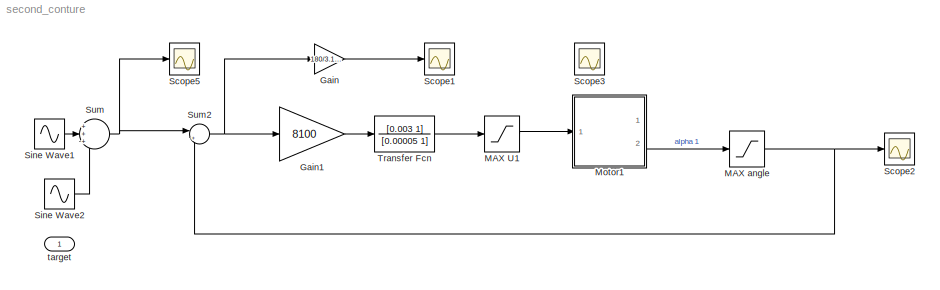
MODEL second_conture
KIND model
BLOCK [Gain] Gain
  Gain = 180/3.14*60*60
  OutDataType = fixdt(1, 16)
  OutDataTypeMode = Inherit via internal rule
  OutDataTypeStr = Inherit: Inherit via internal rule
  OutScaling = 2^0
  ParamDataTypeStr = Inherit: Inherit via internal rule
  ParameterDataType = fixdt(1, 16)
  ParameterDataTypeMode = Inherit via internal rule
  ParameterScaling = 2^0
  SaturateOnIntegerOverflow = off
BLOCK [Gain] Gain1
  Gain = 8100
  OutDataType = fixdt(1, 16)
  OutDataTypeMode = Inherit via internal rule
  OutDataTypeStr = Inherit: Inherit via internal rule
  OutScaling = 2^0
  ParamDataTypeStr = Inherit: Inherit via internal rule
  ParameterDataType = fixdt(1, 16)
  ParameterDataTypeMode = Inherit via internal rule
  ParameterScaling = 2^0
  SaturateOnIntegerOverflow = off
BLOCK [Saturate] MAX U1
  LowerLimit = -12
  UpperLimit = 12
BLOCK [Saturate] MAX angle
  LowerLimit = -4/180*3.14
  UpperLimit = 4/180*3.14
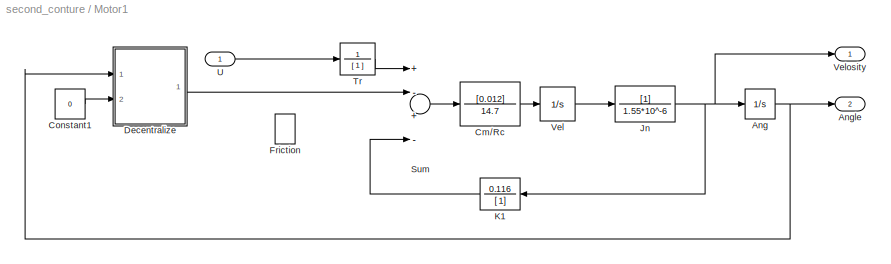
BLOCK [SubSystem] Motor1
  FunctionWithSeparateData = off
  MaskHideContents = off
  MinAlgLoopOccurrences = off
  Opaque = off
  Ports = [1, 2]
  PropExecContextOutsideSubsystem = off
  RTWSystemCode = Auto
  RequestExecContextInheritance = off
  TreatAsAtomicUnit = on
BLOCK [Integrator] Motor1/Ang
  Ports = [1, 1]
BLOCK [Outport] Motor1/Angle
  IconDisplay = Port number
  OutDataType = fixdt(1, 16)
  OutScaling = 2^0
  Port = 2
BLOCK [TransferFcn] Motor1/Cm//Rc
  Denominator = 14.7
  Numerator = [0.012]
BLOCK [Constant] Motor1/Constant1
  OutDataType = fixdt(1, 16)
  OutScaling = 2^0
  Value = 0
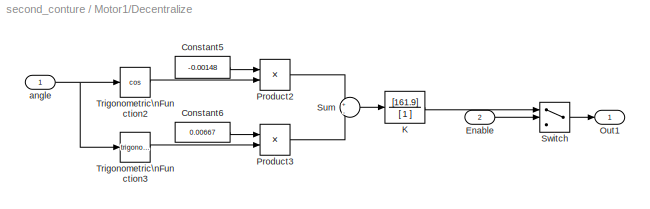
BLOCK [SubSystem] Motor1/Decentralize
  FunctionWithSeparateData = off
  MaskHideContents = off
  MinAlgLoopOccurrences = off
  Opaque = off
  Ports = [2, 1]
  PropExecContextOutsideSubsystem = off
  RTWSystemCode = Auto
  RequestExecContextInheritance = off
  TreatAsAtomicUnit = on
BLOCK [Constant] Motor1/Decentralize/Constant5
  Value = -0.00148
BLOCK [Constant] Motor1/Decentralize/Constant6
  Value = 0.00667
BLOCK [Inport] Motor1/Decentralize/Enable
  IconDisplay = Port number
  OutDataType = fixdt(1, 16)
  OutScaling = 2^0
  Port = 2
BLOCK [TransferFcn] Motor1/Decentralize/K
  Denominator = [ 1 ]
  Numerator = [161.9]
BLOCK [Outport] Motor1/Decentralize/Out1
  IconDisplay = Port number
  OutDataType = fixdt(1, 16)
  OutScaling = 2^0
BLOCK [Product] Motor1/Decentralize/Product2
  InputSameDT = off
  OutDataTypeMode = Inherit via internal rule
  OutDataTypeStr = Inherit: Inherit via internal rule
  Ports = [2, 1]
  SaturateOnIntegerOverflow = off
BLOCK [Product] Motor1/Decentralize/Product3
  InputSameDT = off
  OutDataTypeMode = Inherit via internal rule
  OutDataTypeStr = Inherit: Inherit via internal rule
  Ports = [2, 1]
  SaturateOnIntegerOverflow = off
BLOCK [Sum] Motor1/Decentralize/Sum
  IconShape = round
  InputSameDT = off
  Inputs = +|-
  OutDataType = fixdt(1, 16)
  OutDataTypeMode = Inherit via internal rule
  OutDataTypeStr = Inherit: Inherit via internal rule
  OutScaling = 2^0
  Ports = [2, 1]
  SaturateOnIntegerOverflow = off
BLOCK [Switch] Motor1/Decentralize/Switch
  Criteria = u2 > Threshold
  InputSameDT = off
  OutDataType = fixdt(1, 16)
  OutScaling = 2^0
  SaturateOnIntegerOverflow = off
BLOCK [Trigonometry] Motor1/Decentralize/Trigonometric\nFunction2
  Operator = cos
  Ports = [1, 1]
BLOCK [Trigonometry] Motor1/Decentralize/Trigonometric\nFunction3
  Ports = [1, 1]
BLOCK [Inport] Motor1/Decentralize/angle
  IconDisplay = Port number
  OutDataType = fixdt(1, 16)
  OutScaling = 2^0
BLOCK [DeadZone] Motor1/Friction
  LowerValue = -1.4
  UpperValue = 1.4
BLOCK [TransferFcn] Motor1/Jn
  Denominator = 1.55*10^-6
BLOCK [TransferFcn] Motor1/K1
  Denominator = [ 1]
  Numerator = 0.116
BLOCK [Sum] Motor1/Sum
  InputSameDT = off
  Inputs = +-+-
  OutDataTypeMode = Inherit via internal rule
  OutDataTypeStr = Inherit: Inherit via internal rule
  Ports = [4, 1]
  SaturateOnIntegerOverflow = off
BLOCK [TransferFcn] Motor1/Tr
  Denominator = [ 1 ]
  Numerator = 1
BLOCK [Inport] Motor1/U
  IconDisplay = Port number
  OutDataType = fixdt(1, 16)
  OutScaling = 2^0
BLOCK [Integrator] Motor1/Vel
  Ports = [1, 1]
BLOCK [Outport] Motor1/Velosity
  IconDisplay = Port number
  OutDataType = fixdt(1, 16)
  OutScaling = 2^0
BLOCK [Scope] Scope1
  DataFormat = StructureWithTime
  Floating = off
  MaxDataPoints = 50000
  NumInputPorts = 1
  Ports = [1]
  SampleTime = 0
  YMax = -25.65
  YMin = -28.35
  ZoomMode = xonly
BLOCK [Scope] Scope2
  DataFormat = StructureWithTime
  Floating = off
  MaxDataPoints = 50000
  NumInputPorts = 1
  Ports = [1]
  SampleTime = 0
  SaveName = ScopeData2
  YMax = 65000
  YMin = 25000
  ZoomMode = yonly
BLOCK [Scope] Scope3
  DataFormat = StructureWithTime
  Floating = off
  MaxDataPoints = 50000
  NumInputPorts = 1
  Ports = [1]
  SampleTime = 0
  SaveName = ScopeData3
  YMax = -27
  YMin = -27
  ZoomMode = xonly
BLOCK [Scope] Scope5
  DataFormat = StructureWithTime
  Floating = off
  MaxDataPoints = 50000
  NumInputPorts = 1
  Ports = [1]
  SampleTime = 0
  SaveName = ScopeData5
  YMax = 0.025
  YMin = -0.375
  ZoomMode = yonly
BLOCK [Sin] Sine Wave1
  Amplitude = 1/60
  Bias = 0
  Frequency = 1
  Offset = 0
  Phase = 0
  Ports = [0, 1]
  SampleTime = 0
  Samples = 10
BLOCK [Sin] Sine Wave2
  Amplitude = 1/60
  Bias = 0
  Frequency = 2*pi*4
  Offset = 0
  Phase = 0
  Ports = [0, 1]
  SampleTime = 0
  Samples = 10
BLOCK [Sum] Sum
  IconShape = round
  InputSameDT = off
  Inputs = +++
  OutDataType = fixdt(1, 16)
  OutDataTypeMode = Inherit via internal rule
  OutDataTypeStr = Inherit: Inherit via internal rule
  OutScaling = 2^0
  Ports = [3, 1]
  SaturateOnIntegerOverflow = off
BLOCK [Sum] Sum2
  IconShape = round
  InputSameDT = off
  Inputs = |+-
  OutDataType = fixdt(1, 16)
  OutDataTypeMode = Inherit via internal rule
  OutDataTypeStr = Inherit: Inherit via internal rule
  OutScaling = 2^0
  Ports = [2, 1]
  SaturateOnIntegerOverflow = off
BLOCK [TransferFcn] Transfer Fcn
  Denominator = [0.00005 1]
  Numerator = [0.003 1]
BLOCK [Inport] target
  IconDisplay = Port number
  OutDataType = fixdt(1, 16)
  OutScaling = 2^0
LINE Gain1:1 -> Transfer Fcn:1
LINE Gain:1 -> Scope1:1
LINE MAX U1:1 -> Motor1:1
NET MAX angle:1 -> Scope2:1, Sum2:2
NET Motor1/Ang:1 -> Motor1/Angle:1, Motor1/Decentralize:1
LINE Motor1/Cm//Rc:1 -> Motor1/Vel:1
LINE Motor1/Constant1:1 -> Motor1/Decentralize:2
LINE Motor1/Decentralize/Constant5:1 -> Motor1/Decentralize/Product2:1
LINE Motor1/Decentralize/Constant6:1 -> Motor1/Decentralize/Product3:1
LINE Motor1/Decentralize/Enable:1 -> Motor1/Decentralize/Switch:2
LINE Motor1/Decentralize/K:1 -> Motor1/Decentralize/Switch:1
LINE Motor1/Decentralize/Product2:1 -> Motor1/Decentralize/Sum:1
LINE Motor1/Decentralize/Product3:1 -> Motor1/Decentralize/Sum:2
LINE Motor1/Decentralize/Sum:1 -> Motor1/Decentralize/K:1
LINE Motor1/Decentralize/Switch:1 -> Motor1/Decentralize/Out1:1
LINE Motor1/Decentralize/Trigonometric\nFunction2:1 -> Motor1/Decentralize/Product2:2
LINE Motor1/Decentralize/Trigonometric\nFunction3:1 -> Motor1/Decentralize/Product3:2
NET Motor1/Decentralize/angle:1 -> Motor1/Decentralize/Trigonometric\nFunction2:1, Motor1/Decentralize/Trigonometric\nFunction3:1
LINE Motor1/Decentralize:1 -> Motor1/Sum:2
NET Motor1/Jn:1 -> Motor1/Ang:1, Motor1/K1:1, Motor1/Velosity:1
LINE Motor1/K1:1 -> Motor1/Sum:4
LINE Motor1/Sum:1 -> Motor1/Cm//Rc:1
LINE Motor1/Tr:1 -> Motor1/Sum:1
LINE Motor1/U:1 -> Motor1/Tr:1
LINE Motor1/Vel:1 -> Motor1/Jn:1
LINE Motor1:2 -> MAX angle:1
LINE Sine Wave1:1 -> Sum:2
LINE Sine Wave2:1 -> Sum:3
NET Sum2:1 -> Gain1:1, Gain:1
NET Sum:1 -> Scope5:1, Sum2:1
LINE Transfer Fcn:1 -> MAX U1:1
note: NET lines group one-source signal fan-out (src -> all destinations, sorted); 1:1 wires keep LINE
